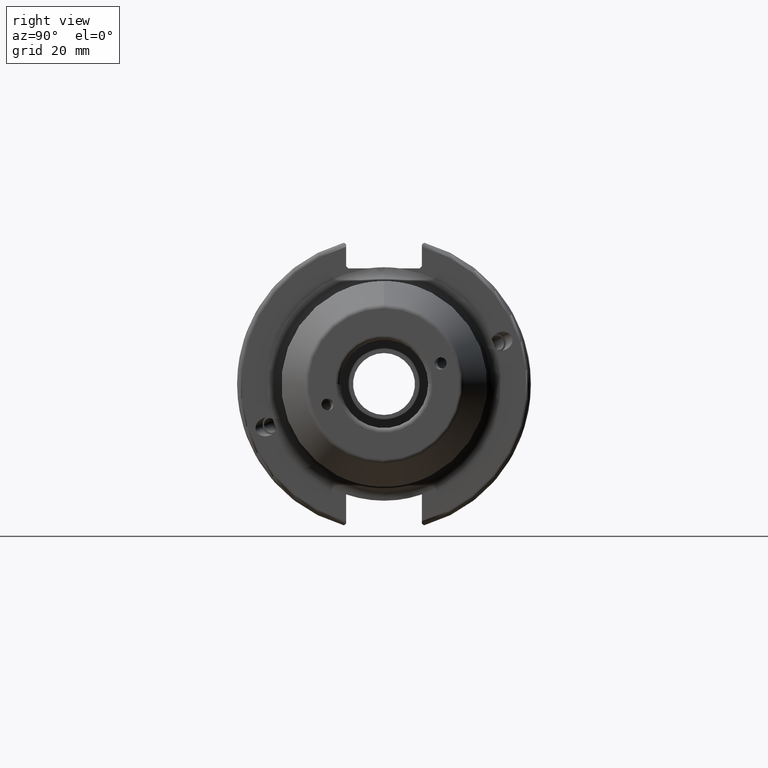
[diagram: clean part render]
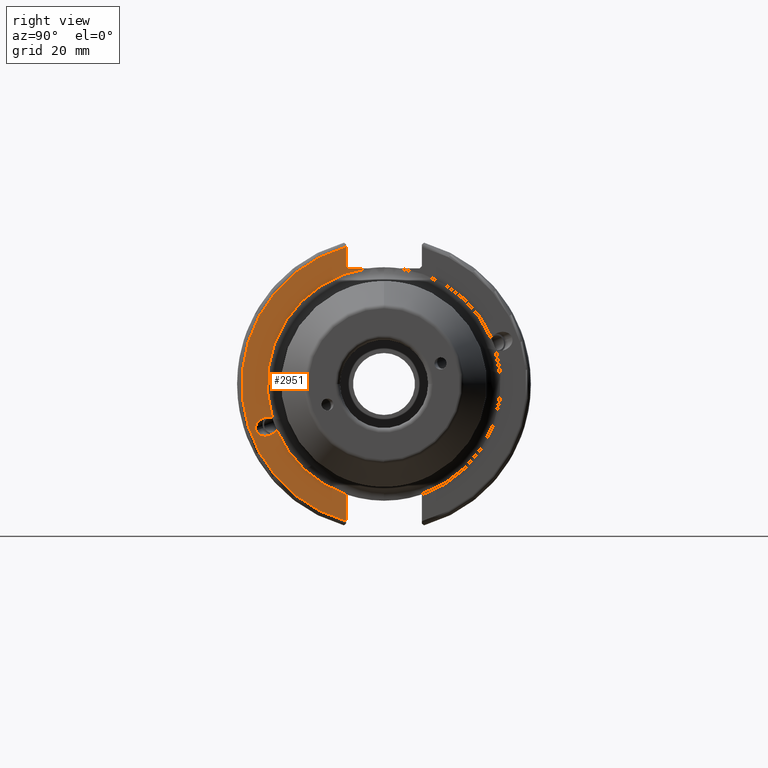
[diagram: same view with one face highlighted and labeled with its STEP entity id]
A machine part, right view. The second image highlights one B-rep face of the part: STEP entity #2951.
In plain terms, the highlighted planar face has unit normal (1, 0, 0).
Its self-contained STEP definition (entity closure, byte-faithful):
#532=CARTESIAN_POINT('',(1.905E1,0.E0,0.E0));
#533=DIRECTION('',(-1.E0,0.E0,0.E0));
#534=DIRECTION('',(0.E0,-3.246778989098E-1,-9.458246465173E-1));
#535=AXIS2_PLACEMENT_3D('',#532,#533,#534);
#537=CARTESIAN_POINT('',(1.905E1,0.E0,0.E0));
#538=DIRECTION('',(1.E0,0.E0,0.E0));
#539=DIRECTION('',(0.E0,-2.663414634146E-1,9.638787397106E-1));
#540=AXIS2_PLACEMENT_3D('',#537,#538,#539);
#542=DIRECTION('',(0.E0,-7.071067811865E-1,7.071067811865E-1));
#543=VECTOR('',#542,7.071067811865E-1);
#544=CARTESIAN_POINT('',(1.905E1,-7.69E0,2.5E1));
#545=LINE('',#544,#543);
#546=CARTESIAN_POINT('',(1.905E1,0.E0,0.E0));
#547=DIRECTION('',(-1.E0,0.E0,0.E0));
#548=DIRECTION('',(0.E0,-9.565535336495E-1,-2.915567479285E-1));
#549=AXIS2_PLACEMENT_3D('',#546,#547,#548);
#551=CARTESIAN_POINT('',(1.905E1,-2.766600650662E1,-1.006960286943E1));
#552=CARTESIAN_POINT('',(1.905E1,-2.774388254214E1,-9.855640220335E0));
#553=CARTESIAN_POINT('',(1.905E1,-2.777763185124E1,-9.554415506249E0));
#554=CARTESIAN_POINT('',(1.905E1,-2.773908888373E1,-9.062090887041E0));
#555=CARTESIAN_POINT('',(1.905E1,-2.755552892830E1,-8.587279331390E0));
#556=CARTESIAN_POINT('',(1.905E1,-2.723224570202E1,-8.124483283054E0));
#557=CARTESIAN_POINT('',(1.905E1,-2.682391180728E1,-7.750012852931E0));
#558=CARTESIAN_POINT('',(1.905E1,-2.633976218915E1,-7.454277496405E0));
#559=CARTESIAN_POINT('',(1.905E1,-2.577176883339E1,-7.245614353350E0));
#560=CARTESIAN_POINT('',(1.905E1,-2.521326308299E1,-7.160186205736E0));
#561=CARTESIAN_POINT('',(1.905E1,-2.466566614888E1,-7.196517117677E0));
#562=CARTESIAN_POINT('',(1.905E1,-2.433993191233E1,-7.268618174997E0));
#563=CARTESIAN_POINT('',(1.905E1,-2.412906288631E1,-7.354518966496E0));
#565=CARTESIAN_POINT('',(1.905E1,-2.321132820859E1,-9.875974270570E0));
#566=CARTESIAN_POINT('',(1.905E1,-2.331764728976E1,-1.007732209175E1));
#567=CARTESIAN_POINT('',(1.905E1,-2.352082852531E1,-1.034193263736E1));
#568=CARTESIAN_POINT('',(1.905E1,-2.391695905371E1,-1.072175225491E1));
#569=CARTESIAN_POINT('',(1.905E1,-2.439971143506E1,-1.101531107344E1));
#570=CARTESIAN_POINT('',(1.905E1,-2.496894567193E1,-1.122056492369E1));
#571=CARTESIAN_POINT('',(1.905E1,-2.552992081946E1,-1.130522387296E1));
#572=CARTESIAN_POINT('',(1.905E1,-2.608342768313E1,-1.128083484900E1));
#573=CARTESIAN_POINT('',(1.905E1,-2.662855656786E1,-1.113411496015E1));
#574=CARTESIAN_POINT('',(1.905E1,-2.707437463661E1,-1.088837827140E1));
#575=CARTESIAN_POINT('',(1.905E1,-2.742036042786E1,-1.053601067460E1));
#576=CARTESIAN_POINT('',(1.905E1,-2.758813047111E1,-1.028356551852E1));
#577=CARTESIAN_POINT('',(1.905E1,-2.766600650662E1,-1.006960286943E1));
#597=CARTESIAN_POINT('',(1.905E1,-2.321132820859E1,-9.875974270570E0));
#599=CARTESIAN_POINT('',(1.905E1,-2.412906288631E1,-7.354518966496E0));
#897=DIRECTION('',(0.E0,0.E0,-1.E0));
#898=VECTOR('',#897,4.139271246102E0);
#899=CARTESIAN_POINT('',(1.905E1,-8.19E0,2.963927124610E1));
#900=LINE('',#899,#898);
#948=DIRECTION('',(0.E0,0.E0,-1.E0));
#949=VECTOR('',#948,5.780844537704E0);
#950=CARTESIAN_POINT('',(1.905E1,-8.19E0,-2.385842670840E1));
#951=LINE('',#950,#949);
#1079=DIRECTION('',(0.E0,1.E0,0.E0));
#1080=VECTOR('',#1079,4.328359775348E0);
#1081=CARTESIAN_POINT('',(1.905E1,-7.69E0,2.5E1));
#1082=LINE('',#1081,#1080);
#2162=CARTESIAN_POINT('',(1.905E1,-7.69E0,2.5E1));
#2163=CARTESIAN_POINT('',(1.905E1,-8.19E0,2.55E1));
#2164=VERTEX_POINT('',#2162);
#2165=VERTEX_POINT('',#2163);
#2166=CARTESIAN_POINT('',(1.905E1,-8.19E0,2.963927124610E1));
#2167=VERTEX_POINT('',#2166);
#2168=CARTESIAN_POINT('',(1.905E1,-8.19E0,-2.963927124610E1));
#2169=VERTEX_POINT('',#2168);
#2265=CARTESIAN_POINT('',(1.905E1,-2.766600650662E1,-1.006960286943E1));
#2267=VERTEX_POINT('',#2265);
#2409=VERTEX_POINT('',#597);
#2410=VERTEX_POINT('',#599);
#2420=CARTESIAN_POINT('',(1.905E1,-8.19E0,-2.385842670840E1));
#2421=VERTEX_POINT('',#2420);
#2422=CARTESIAN_POINT('',(1.905E1,-3.361640224652E0,2.5E1));
#2423=VERTEX_POINT('',#2422);
#2928=CARTESIAN_POINT('',(1.905E1,0.E0,0.E0));
#2929=DIRECTION('',(1.E0,0.E0,0.E0));
#2930=DIRECTION('',(0.E0,0.E0,-1.E0));
#2931=AXIS2_PLACEMENT_3D('',#2928,#2929,#2930);
#2932=PLANE('',#2931);
#2933=ORIENTED_EDGE('',*,*,#2884,.F.);
#2935=ORIENTED_EDGE('',*,*,#2934,.T.);
#2937=ORIENTED_EDGE('',*,*,#2936,.F.);
#2939=ORIENTED_EDGE('',*,*,#2938,.T.);
#2941=ORIENTED_EDGE('',*,*,#2940,.F.);
#2943=ORIENTED_EDGE('',*,*,#2942,.T.);
#2944=ORIENTED_EDGE('',*,*,#2888,.F.);
#2946=ORIENTED_EDGE('',*,*,#2945,.F.);
#2948=ORIENTED_EDGE('',*,*,#2947,.F.);
#2949=EDGE_LOOP('',(#2933,#2935,#2937,#2939,#2941,#2943,#2944,#2946,#2948));
#2950=FACE_OUTER_BOUND('',#2949,.F.);
#2951=ADVANCED_FACE('',(#2950),#2932,.T.);
#536=CIRCLE('',#535,2.5225E1);
#541=CIRCLE('',#540,3.075E1);
#550=CIRCLE('',#549,2.5225E1);
#564=B_SPLINE_CURVE_WITH_KNOTS('',3,(#551,#552,#553,#554,#555,#556,#557,#558,
#559,#560,#561,#562,#563),.UNSPECIFIED.,.F.,.F.,(4,1,1,1,1,1,1,1,1,1,4),(0.E0,
6.25E-2,1.25E-1,2.5E-1,3.75E-1,5.E-1,6.25E-1,7.5E-1,8.75E-1,9.375E-1,1.E0),
.UNSPECIFIED.);
#578=B_SPLINE_CURVE_WITH_KNOTS('',3,(#565,#566,#567,#568,#569,#570,#571,#572,
#573,#574,#575,#576,#577),.UNSPECIFIED.,.F.,.F.,(4,1,1,1,1,1,1,1,1,1,4),(0.E0,
6.25E-2,1.25E-1,2.5E-1,3.75E-1,5.E-1,6.25E-1,7.5E-1,8.75E-1,9.375E-1,1.E0),
.UNSPECIFIED.);
#2884=EDGE_CURVE('',#2421,#2409,#536,.T.);
#2888=EDGE_CURVE('',#2410,#2423,#550,.T.);
#2934=EDGE_CURVE('',#2421,#2169,#951,.T.);
#2936=EDGE_CURVE('',#2167,#2169,#541,.T.);
#2938=EDGE_CURVE('',#2167,#2165,#900,.T.);
#2940=EDGE_CURVE('',#2164,#2165,#545,.T.);
#2942=EDGE_CURVE('',#2164,#2423,#1082,.T.);
#2945=EDGE_CURVE('',#2267,#2410,#564,.T.);
#2947=EDGE_CURVE('',#2409,#2267,#578,.T.);